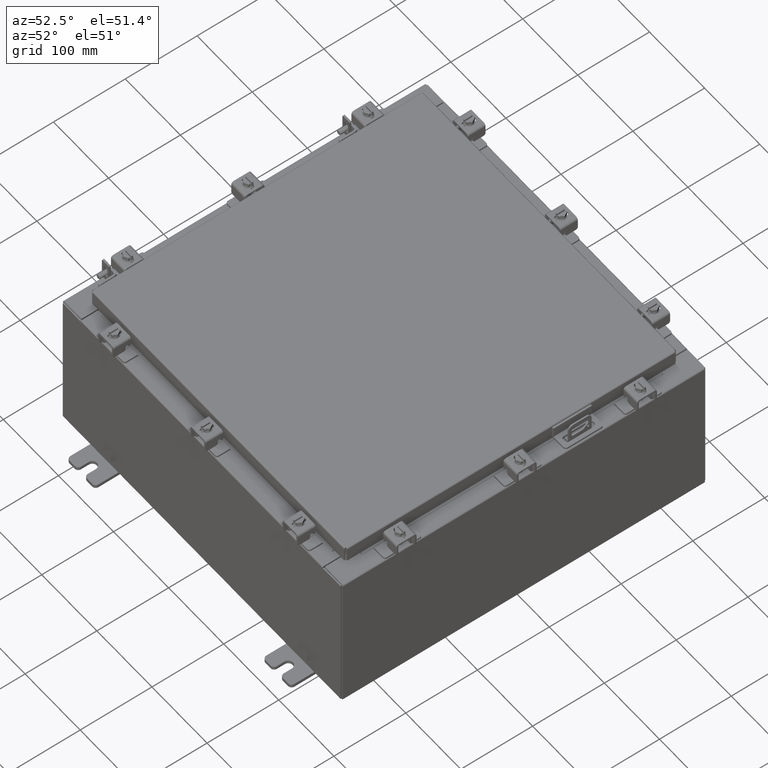
[diagram: clean part render]
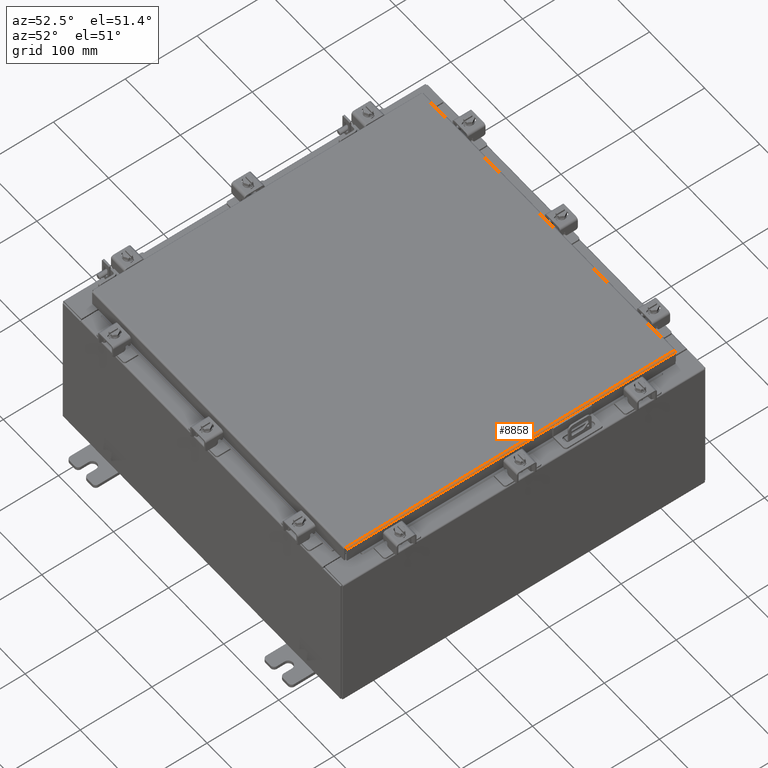
[diagram: same view with one face highlighted and labeled with its STEP entity id]
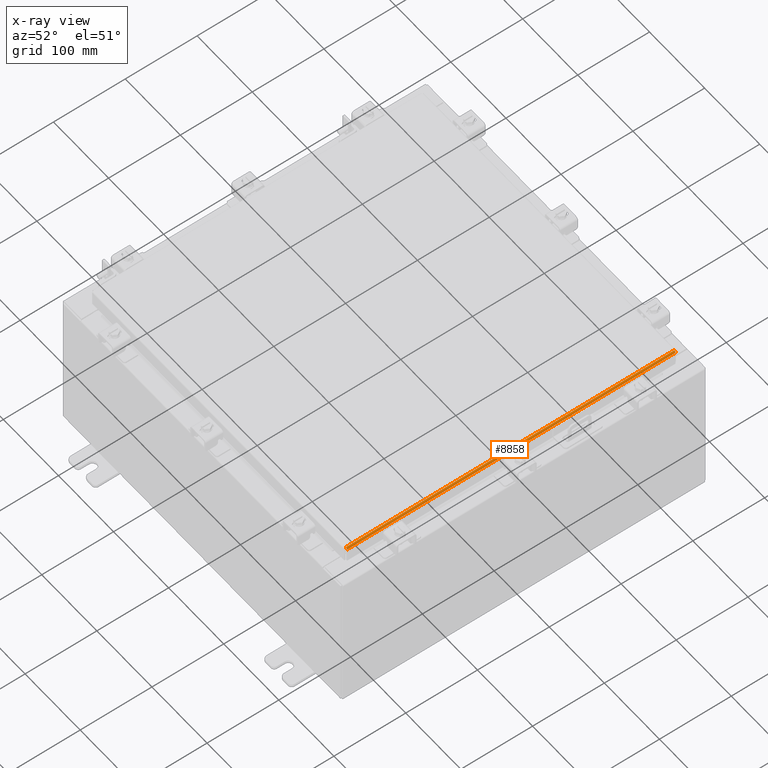
[diagram: x-ray of the same camera — body ghosted, the highlighted face saturated]
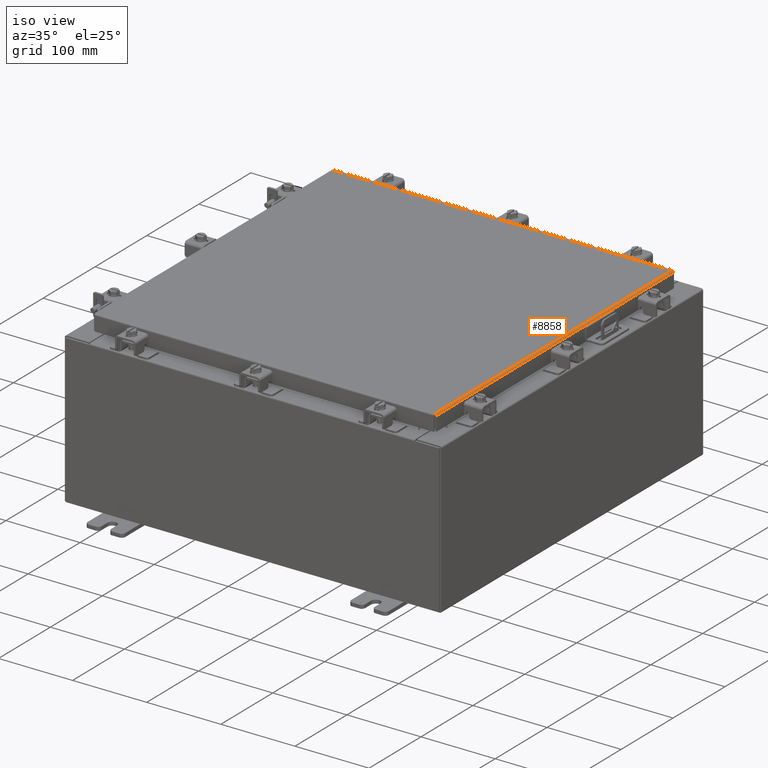
[diagram: same view with one face highlighted and labeled with its STEP entity id]
A machine part, auxiliary view. The second image highlights one B-rep face of the part: STEP entity #8858.
The next image is the same camera in x-ray: the body ghosted, the highlighted face saturated — about 0% of this face is hidden behind the body in this view.
A second angle (iso view) of the same face is appended — the face is thin or edge-on in the first view.
In plain terms, the highlighted cylindrical surface (edge-blend (fillet) strip) has radius 2.2276 mm, axis along (-0, -1, -0).
Its self-contained STEP definition (entity closure, byte-faithful):
#36 = LINE ( 'NONE', #1742, #18100 ) ;
#1039 = CARTESIAN_POINT ( 'NONE',  ( 9.029255289458310700, 9.006109644062714600, -0.002282596256189017100 ) ) ;
#1667 = CARTESIAN_POINT ( 'NONE',  ( 9.082931066258664600, -9.005538576250842200, -0.04353261542147005700 ) ) ;
#1742 = CARTESIAN_POINT ( 'NONE',  ( 9.094000000000001200, -5.269035934039632300E-018, -0.08769999999999918100 ) ) ;
#2779 = CARTESIAN_POINT ( 'NONE',  ( 9.060195747341802900, 9.005824110156780200, -0.01756921792168066000 ) ) ;
#3339 = CARTESIAN_POINT ( 'NONE',  ( 9.006300000000001300, 9.006299999999999500, 0.0000000000000000000 ) ) ;
#3389 = CARTESIAN_POINT ( 'NONE',  ( 9.060195747341801100, -9.005824110156778400, -0.01756921792167882200 ) ) ;
#3410 = ORIENTED_EDGE ( 'NONE', *, *, #15256, .F. ) ;
#4527 = CARTESIAN_POINT ( 'NONE',  ( 9.082931066258671700, 9.005538576250847500, -0.04353261542147437300 ) ) ;
#4716 = DIRECTION ( 'NONE',  ( 0.0000000000000000000, 1.000000000000000000, 0.0000000000000000000 ) ) ;
#5041 = LINE ( 'NONE', #20317, #8628 ) ;
#5170 = CARTESIAN_POINT ( 'NONE',  ( 9.029255289458308900, -9.006109644062712900, -0.002282596256188758200 ) ) ;
#5497 = CARTESIAN_POINT ( 'NONE',  ( 9.006300000000001300, -9.006299999999999500, 0.0000000000000000000 ) ) ;
#5826 = VERTEX_POINT ( 'NONE', #18030 ) ;
#6289 = CARTESIAN_POINT ( 'NONE',  ( 9.094000000000001200, 9.005253042344913100, -0.07622009684501077100 ) ) ;
#6624 = CARTESIAN_POINT ( 'NONE',  ( 9.006300000000001300, 9.006299999999999500, 0.0000000000000000000 ) ) ;
#6920 = CARTESIAN_POINT ( 'NONE',  ( 9.006300000000001300, -9.006299999999999500, 0.0000000000000000000 ) ) ;
#8123 = ORIENTED_EDGE ( 'NONE', *, *, #13999, .F. ) ;
#8529 = VERTEX_POINT ( 'NONE', #18045 ) ;
#8628 = VECTOR ( 'NONE', #4716, 39.37007874015748100 ) ;
#8689 = FACE_OUTER_BOUND ( 'NONE', #16787, .T. ) ;
#8829 = ORIENTED_EDGE ( 'NONE', *, *, #16520, .F. ) ;
#8858 = ADVANCED_FACE ( 'NONE', ( #8689 ), #22059, .T. ) ;
#9767 = VERTEX_POINT ( 'NONE', #5497 ) ;
#10376 = CARTESIAN_POINT ( 'NONE',  ( 9.094000000000001200, -9.005157864376267100, -0.08769999999999918100 ) ) ;
#11185 = B_SPLINE_CURVE_WITH_KNOTS ( 'NONE', 3,
 ( #10376, #22546, #12147, #1667, #13889, #3389, #15666, #5170, #17414, #6920 ),
 .UNSPECIFIED., .F., .F.,
 ( 4, 2, 2, 2, 4 ),
 ( 0.0000000000000000000, 0.2500000000000000000, 0.5000000000000000000, 0.7500000000000000000, 1.000000000000000000 ),
 .UNSPECIFIED. ) ;
#11676 = DIRECTION ( 'NONE',  ( 1.000000000000000000, 0.0000000000000000000, 2.725618009642215600E-015 ) ) ;
#12147 = CARTESIAN_POINT ( 'NONE',  ( 9.091717403743809100, -9.005348220313557300, -0.06474471054168821900 ) ) ;
#13309 = CARTESIAN_POINT ( 'NONE',  ( 9.050467384578526600, 9.005919288125422600, -0.01106893374133231800 ) ) ;
#13456 = AXIS2_PLACEMENT_3D ( 'NONE', #16883, #15201, #11676 ) ;
#13889 = CARTESIAN_POINT ( 'NONE',  ( 9.076430782078320500, -9.005633754219491700, -0.03380425265819837100 ) ) ;
#13920 = CARTESIAN_POINT ( 'NONE',  ( 9.017779903154993400, 9.006204822031353500, -1.701735877889249200E-016 ) ) ;
#13977 = DIRECTION ( 'NONE',  ( -1.693590113897317100E-031, -1.000000000000000000, 6.008022858289562200E-017 ) ) ;
#13999 = EDGE_CURVE ( 'NONE', #5826, #8529, #36, .T. ) ;
#15042 = CARTESIAN_POINT ( 'NONE',  ( 9.076430782078322300, 9.005633754219490000, -0.03380425265820177800 ) ) ;
#15201 = DIRECTION ( 'NONE',  ( -0.0000000000000000000, -1.000000000000000000, -0.0000000000000000000 ) ) ;
#15256 = EDGE_CURVE ( 'NONE', #19306, #5826, #18119, .T. ) ;
#15666 = CARTESIAN_POINT ( 'NONE',  ( 9.050467384578528400, -9.005919288125422600, -0.01106893374133114200 ) ) ;
#15786 = ORIENTED_EDGE ( 'NONE', *, *, #16665, .F. ) ;
#16520 = EDGE_CURVE ( 'NONE', #9767, #19306, #5041, .T. ) ;
#16665 = EDGE_CURVE ( 'NONE', #8529, #9767, #11185, .T. ) ;
#16787 = EDGE_LOOP ( 'NONE', ( #8829, #15786, #8123, #3410 ) ) ;
#16799 = CARTESIAN_POINT ( 'NONE',  ( 9.091717403743812700, 9.005348220313560900, -0.06474471054169418600 ) ) ;
#16883 = CARTESIAN_POINT ( 'NONE',  ( 9.006300000000001300, -9.006299999999999500, -0.08770000000000026400 ) ) ;
#17414 = CARTESIAN_POINT ( 'NONE',  ( 9.017779903154993400, -9.006204822031355300, -1.696066759738335700E-016 ) ) ;
#18030 = CARTESIAN_POINT ( 'NONE',  ( 9.094000000000001200, 9.005157864376268900, -0.08769999999999918100 ) ) ;
#18045 = CARTESIAN_POINT ( 'NONE',  ( 9.094000000000001200, -9.005157864376267100, -0.08769999999999918100 ) ) ;
#18100 = VECTOR ( 'NONE', #13977, 39.37007874015748100 ) ;
#18119 = B_SPLINE_CURVE_WITH_KNOTS ( 'NONE', 3,
 ( #3339, #13920, #1039, #13309, #2779, #15042, #4527, #16799, #6289, #18561 ),
 .UNSPECIFIED., .F., .F.,
 ( 4, 2, 2, 2, 4 ),
 ( 0.0000000000000000000, 0.2500000000000000000, 0.5000000000000000000, 0.7500000000000000000, 1.000000000000000000 ),
 .UNSPECIFIED. ) ;
#18561 = CARTESIAN_POINT ( 'NONE',  ( 9.094000000000001200, 9.005157864376268900, -0.08769999999999918100 ) ) ;
#19306 = VERTEX_POINT ( 'NONE', #6624 ) ;
#20317 = CARTESIAN_POINT ( 'NONE',  ( 9.006300000000001300, -9.006299999999999500, 0.0000000000000000000 ) ) ;
#22059 = CYLINDRICAL_SURFACE ( 'NONE', #13456, 0.08770000000000026400 ) ;
#22546 = CARTESIAN_POINT ( 'NONE',  ( 9.094000000000001200, -9.005253042344913100, -0.07622009684500395700 ) ) ;